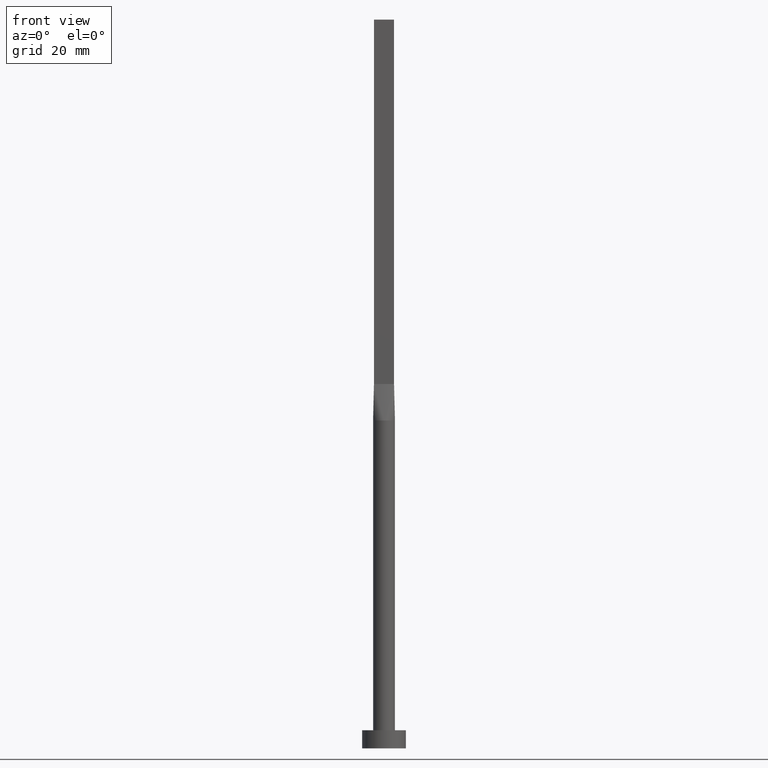
[diagram: clean part render]
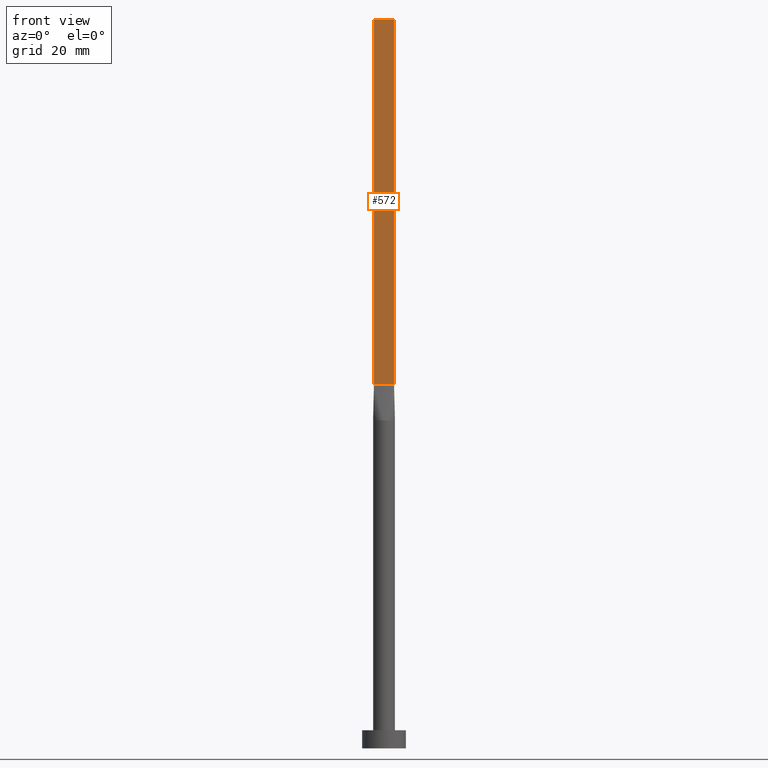
[diagram: same view with one face highlighted and labeled with its STEP entity id]
A machine part, front view. The second image highlights one B-rep face of the part: STEP entity #572.
In plain terms, the highlighted planar face has unit normal (0, 1, -0).
Its self-contained STEP definition (entity closure, byte-faithful):
#6 = CARTESIAN_POINT ( 'NONE',  ( -2.750000000000000000, -0.9999999999999993339, 200.0000000000000000 ) ) ;
#7 = ORIENTED_EDGE ( 'NONE', *, *, #246, .T. ) ;
#81 = LINE ( 'NONE', #335, #308 ) ;
#106 = DIRECTION ( 'NONE',  ( 1.000000000000000000, -7.885106708985487801E-17, 0.000000000000000000 ) ) ;
#159 = ORIENTED_EDGE ( 'NONE', *, *, #522, .T. ) ;
#161 = ORIENTED_EDGE ( 'NONE', *, *, #275, .F. ) ;
#163 = DIRECTION ( 'NONE',  ( -0.000000000000000000, -0.000000000000000000, -1.000000000000000000 ) ) ;
#164 = VECTOR ( 'NONE', #106, 1000.000000000000000 ) ;
#175 = VERTEX_POINT ( 'NONE', #561 ) ;
#176 = DIRECTION ( 'NONE',  ( -0.000000000000000000, -0.000000000000000000, -1.000000000000000000 ) ) ;
#190 = EDGE_CURVE ( 'NONE', #292, #175, #332, .T. ) ;
#227 = DIRECTION ( 'NONE',  ( 7.885106708985487801E-17, 1.000000000000000000, -0.000000000000000000 ) ) ;
#234 = DIRECTION ( 'NONE',  ( -1.000000000000000000, 7.885106708985487801E-17, 0.000000000000000000 ) ) ;
#246 = EDGE_CURVE ( 'NONE', #473, #552, #282, .T. ) ;
#275 = EDGE_CURVE ( 'NONE', #175, #552, #81, .T. ) ;
#282 = LINE ( 'NONE', #463, #450 ) ;
#292 = VERTEX_POINT ( 'NONE', #422 ) ;
#308 = VECTOR ( 'NONE', #163, 1000.000000000000000 ) ;
#320 = AXIS2_PLACEMENT_3D ( 'NONE', #453, #227, #234 ) ;
#332 = LINE ( 'NONE', #466, #164 ) ;
#335 = CARTESIAN_POINT ( 'NONE',  ( 2.750000000000000000, -0.9999999999999997780, 200.0000000000000000 ) ) ;
#350 = CARTESIAN_POINT ( 'NONE',  ( -2.750000000000000000, -0.9999999999999993339, 100.0000000000000000 ) ) ;
#369 = PLANE ( 'NONE',  #320 ) ;
#401 = LINE ( 'NONE', #6, #501 ) ;
#422 = CARTESIAN_POINT ( 'NONE',  ( -2.750000000000000000, -0.9999999999999993339, 200.0000000000000000 ) ) ;
#429 = ORIENTED_EDGE ( 'NONE', *, *, #190, .F. ) ;
#447 = EDGE_LOOP ( 'NONE', ( #7, #161, #429, #159 ) ) ;
#450 = VECTOR ( 'NONE', #461, 1000.000000000000000 ) ;
#453 = CARTESIAN_POINT ( 'NONE',  ( -2.750000000000000000, -0.9999999999999993339, 200.0000000000000000 ) ) ;
#461 = DIRECTION ( 'NONE',  ( 1.000000000000000000, -7.885106708985487801E-17, 0.000000000000000000 ) ) ;
#462 = CARTESIAN_POINT ( 'NONE',  ( 2.750000000000000000, -0.9999999999999997780, 100.0000000000000000 ) ) ;
#463 = CARTESIAN_POINT ( 'NONE',  ( -2.750000000000000000, -0.9999999999999993339, 100.0000000000000000 ) ) ;
#466 = CARTESIAN_POINT ( 'NONE',  ( -2.750000000000000000, -0.9999999999999993339, 200.0000000000000000 ) ) ;
#473 = VERTEX_POINT ( 'NONE', #350 ) ;
#501 = VECTOR ( 'NONE', #176, 1000.000000000000000 ) ;
#522 = EDGE_CURVE ( 'NONE', #292, #473, #401, .T. ) ;
#547 = FACE_OUTER_BOUND ( 'NONE', #447, .T. ) ;
#552 = VERTEX_POINT ( 'NONE', #462 ) ;
#561 = CARTESIAN_POINT ( 'NONE',  ( 2.750000000000000000, -0.9999999999999997780, 200.0000000000000000 ) ) ;
#572 = ADVANCED_FACE ( 'NONE', ( #547 ), #369, .F. ) ;